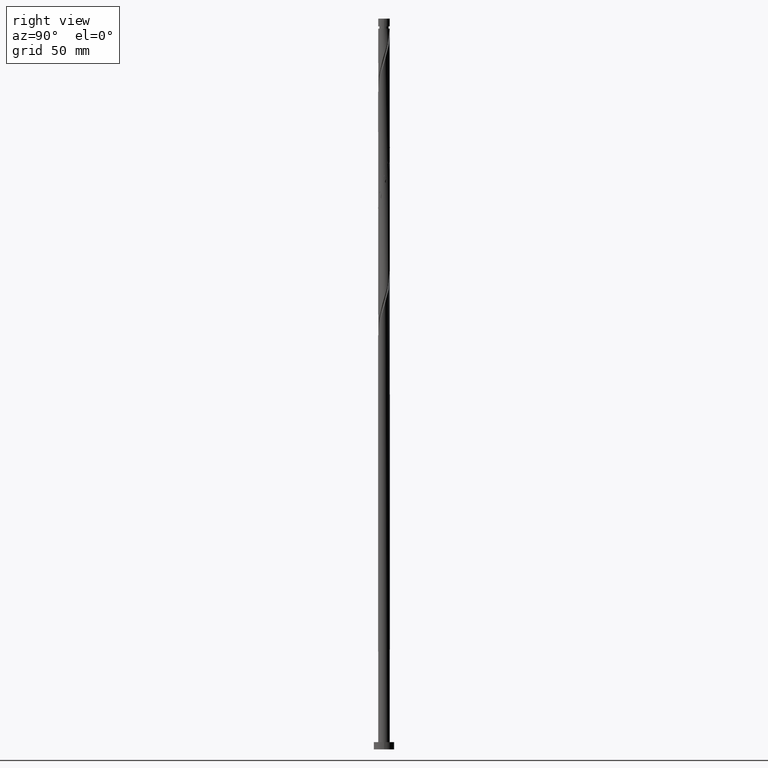
[diagram: clean part render]
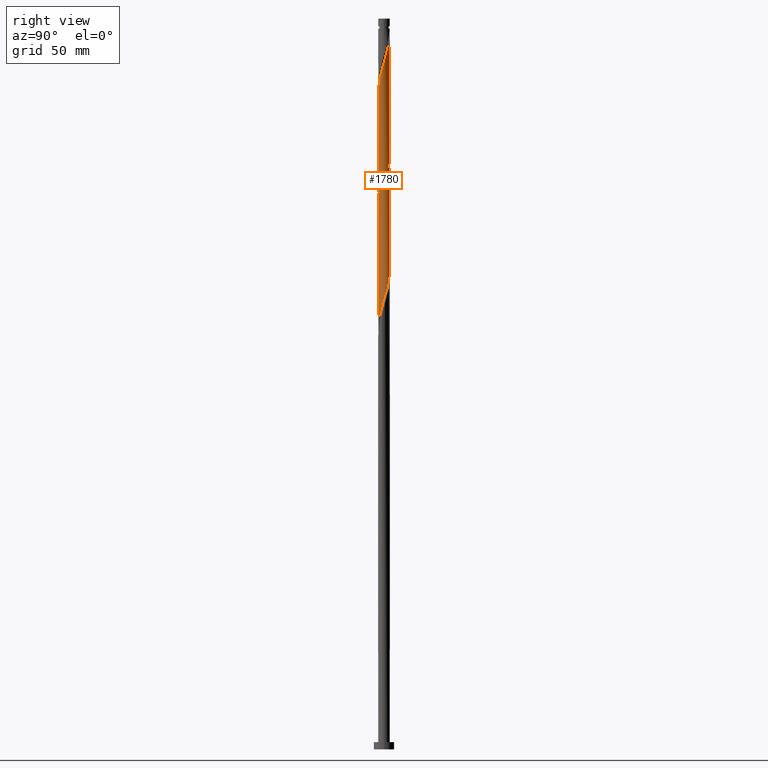
[diagram: same view with one face highlighted and labeled with its STEP entity id]
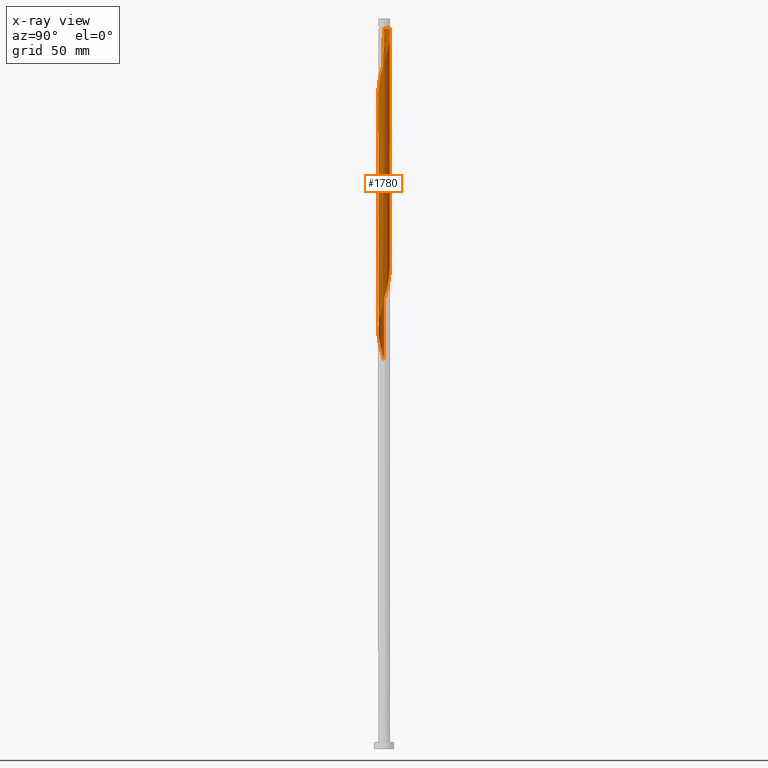
[diagram: x-ray of the same camera — body ghosted, the highlighted face saturated]
A machine part, right view. The second image highlights one B-rep face of the part: STEP entity #1780.
The next image is the same camera in x-ray: the body ghosted, the highlighted face saturated — about 0% of this face is hidden behind the body in this view.
In plain terms, the highlighted cylindrical surface (bore or boss wall) has radius 4 mm, axis along (-0, -0, -1).
Its self-contained STEP definition (entity closure, byte-faithful):
#1 = CARTESIAN_POINT ( 'NONE',  ( -2.537448808407606560, 3.117140107418181039, 338.1535422064215481 ) ) ;
#21 = CARTESIAN_POINT ( 'NONE',  ( 4.000000000000000000, 2.392225730791804345E-15, 391.5916558510851928 ) ) ;
#22 = AXIS2_PLACEMENT_3D ( 'NONE', #637, #1254, #1717 ) ;
#26 = EDGE_LOOP ( 'NONE', ( #1021, #1525, #1716, #1570, #176, #1401, #1177, #1411 ) ) ;
#28 = CARTESIAN_POINT ( 'NONE',  ( 4.000000000000000000, 4.898587196589412829E-16, 493.1014588730882906 ) ) ;
#70 =( BOUNDED_CURVE ( )  B_SPLINE_CURVE ( 2, ( #1037, #277, #1552, #464, #145, #1381, #1978, #318, #1230, #597, #763, #751, #629, #1517, #163, #1671, #1832, #1068, #781, #456, #1388, #1371, #309, #1839, #621, #1238, #1362, #1847, #362, #1858, #804, #1868, #669, #1405, #21 ),
 .UNSPECIFIED., .F., .T. ) 
 B_SPLINE_CURVE_WITH_KNOTS ( ( 3, 2, 2, 2, 2, 2, 2, 2, 2, 2, 2, 2, 2, 2, 2, 2, 2, 3 ),
 ( 0.4295286902180868727, 0.4296875000000000000, 0.4375000000000000000, 0.4453125000000000000, 0.4531250000000000000, 0.4609375000000000000, 0.4687500000000000000, 0.4765625000000000000, 0.4843750000000000000, 0.4921875000000000000, 0.5000000000000000000, 0.5078125000000000000, 0.5156250000000000000, 0.5234375000000000000, 0.5312500000000000000, 0.5390625000000000000, 0.5468750000000000000, 0.5545286902180870392 ),
 .UNSPECIFIED. ) 
 CURVE ( )  GEOMETRIC_REPRESENTATION_ITEM ( )  RATIONAL_B_SPLINE_CURVE ( ( 0.9089165573359603290, 0.9090019243628651990, 0.9090909090909571333, 0.9047133878838632404, 0.9090909090909571333, 0.9047133878838632404, 0.9090909090909571333, 0.9047133878838632404, 0.9090909090909571333, 0.9047133878838632404, 0.9090909090909571333, 0.9047133878838632404, 0.9090909090909571333, 0.9047133878838632404, 0.9090909090909571333, 0.9047133878838632404, 0.9090909090909571333, 0.9047133878838632404, 0.9090909090909571333, 0.9047133878838632404, 0.9090909090909571333, 0.9047133878838632404, 0.9090909090909571333, 0.9047133878838632404, 0.9090909090909571333, 0.9047133878838632404, 0.9090909090909571333, 0.9047133878838632404, 0.9090909090909571333, 0.9047133878838632404, 0.9090909090909571333, 0.9047133878838632404, 0.9090909090909571333, 0.9048023726119551746, 0.9089165573359603290 ) ) 
 REPRESENTATION_ITEM ( '' )  );
#71 = CARTESIAN_POINT ( 'NONE',  ( -3.316995601370557711, 2.235517877470090120, 342.0597922064217187 ) ) ;
#95 = CYLINDRICAL_SURFACE ( 'NONE', #1194, 4.000000000000000000 ) ;
#107 = DIRECTION ( 'NONE',  ( -1.000000000000000000, 0.000000000000000000, 0.000000000000000000 ) ) ;
#116 = CARTESIAN_POINT ( 'NONE',  ( 2.817132558398053099, -2.839676768298398990, 297.7889588730882338 ) ) ;
#119 = CARTESIAN_POINT ( 'NONE',  ( 3.998398167202708464, 0.4099036485252169904, 470.9660422064217187 ) ) ;
#122 = CARTESIAN_POINT ( 'NONE',  ( 3.850901564665827781, -1.151419143413270341, 465.7577088730883474 ) ) ;
#123 = CARTESIAN_POINT ( 'NONE',  ( -0.7959899496853010126, -3.919999999999999041, 284.7681255397549762 ) ) ;
#130 = VERTEX_POINT ( 'NONE', #379 ) ;
#135 = CARTESIAN_POINT ( 'NONE',  ( 3.117140107418182815, 2.537448808407604339, 317.3202088730882906 ) ) ;
#145 = CARTESIAN_POINT ( 'NONE',  ( -3.919999999999999041, 0.7959899496853005685, 430.6014588730882906 ) ) ;
#147 = CARTESIAN_POINT ( 'NONE',  ( 3.850901564665822452, 1.151419143413265900, 312.1118755397549762 ) ) ;
#148 = CARTESIAN_POINT ( 'NONE',  ( 3.841601832797294946, -1.182076250845383036, 387.6327088730882338 ) ) ;
#149 = CARTESIAN_POINT ( 'NONE',  ( -3.841601832797301608, -1.182076250845385479, 431.9035422064216050 ) ) ;
#154 = VECTOR ( 'NONE', #840, 1000.000000000000000 ) ;
#157 = CARTESIAN_POINT ( 'NONE',  ( 3.096816308388497863, -2.562213429178616941, 382.4243755397549194 ) ) ;
#158 = CARTESIAN_POINT ( 'NONE',  ( 0.7959899496853002354, -3.920000000000004370, 451.4347922064217187 ) ) ;
#163 = CARTESIAN_POINT ( 'NONE',  ( -1.515993858575281239, 3.701589202053900962, 417.5806255397549762 ) ) ;
#165 = CARTESIAN_POINT ( 'NONE',  ( 0.7647202322722135293, -3.926219933517929306, 373.3097922064218324 ) ) ;
#172 = CARTESIAN_POINT ( 'NONE',  ( -1.880568573737295468, 3.552276839441978584, 335.5493755397549194 ) ) ;
#176 = ORIENTED_EDGE ( 'NONE', *, *, #1199, .F. ) ;
#180 = EDGE_CURVE ( 'NONE', #1385, #416, #244, .T. ) ;
#188 = CARTESIAN_POINT ( 'NONE',  ( 2.817132558398058872, 2.839676768298401655, 480.0806255397549194 ) ) ;
#204 = CARTESIAN_POINT ( 'NONE',  ( 0.7647202322722181922, 3.926219933517933747, 487.8931255397550331 ) ) ;
#213 = CARTESIAN_POINT ( 'NONE',  ( -4.000000000000000000, -1.998025698020112396E-15, 266.5916558510852497 ) ) ;
#222 = CARTESIAN_POINT ( 'NONE',  ( -4.000000000000000000, 0.000000000000000000, 500.0000000000000000 ) ) ;
#244 = LINE ( 'NONE', #222, #154 ) ;
#266 = CARTESIAN_POINT ( 'NONE',  ( 0.000000000000000000, 0.000000000000000000, 500.0000000000000000 ) ) ;
#277 = CARTESIAN_POINT ( 'NONE',  ( -4.000000000000000000, 0.007970613497029151867, 433.2319689632346353 ) ) ;
#279 = CARTESIAN_POINT ( 'NONE',  ( -3.334708473430080033, -2.209008691072452013, 357.6847922064217187 ) ) ;
#280 = CARTESIAN_POINT ( 'NONE',  ( 3.999968234786374754, 0.01594116369702554964, 469.6639588730882338 ) ) ;
#284 = CARTESIAN_POINT ( 'NONE',  ( -3.689388363574960916, -1.545449288303474500, 433.2056255397549194 ) ) ;
#293 = CARTESIAN_POINT ( 'NONE',  ( 1.182076250845383480, 3.841601832797294946, 325.1327088730882338 ) ) ;
#301 = VERTEX_POINT ( 'NONE', #1294 ) ;
#308 = CARTESIAN_POINT ( 'NONE',  ( 3.998398167202702247, -0.4099036485252184336, 306.9035422064217187 ) ) ;
#309 = CARTESIAN_POINT ( 'NONE',  ( 1.545449288303474278, 3.689388363574954699, 407.1639588730882906 ) ) ;
#311 = CARTESIAN_POINT ( 'NONE',  ( 3.701589202053900962, 1.515993858575279463, 313.4139588730882906 ) ) ;
#312 = CARTESIAN_POINT ( 'NONE',  ( -0.7647202322722158607, -3.926219933517934635, 446.2264588730882906 ) ) ;
#318 = CARTESIAN_POINT ( 'NONE',  ( -3.537174894352615784, 1.908822325761561745, 426.6952088730882338 ) ) ;
#325 = CARTESIAN_POINT ( 'NONE',  ( 1.151419143413270785, 3.850901564665826893, 486.5910422064216618 ) ) ;
#326 = CARTESIAN_POINT ( 'NONE',  ( 2.209008691072451125, -3.334708473430080478, 295.1847922064216618 ) ) ;
#328 = CARTESIAN_POINT ( 'NONE',  ( 3.334708473430084918, -2.209008691072455566, 461.8514588730882906 ) ) ;
#342 = CARTESIAN_POINT ( 'NONE',  ( 3.841601832797301608, 1.182076250845383258, 473.5702088730884043 ) ) ;
#345 = CARTESIAN_POINT ( 'NONE',  ( -4.000000000000005329, -2.436957649404176998E-15, 427.9445952284248165 ) ) ;
#346 = CARTESIAN_POINT ( 'NONE',  ( 1.545449288303475388, -3.689388363574960916, 454.0389588730883474 ) ) ;
#362 = CARTESIAN_POINT ( 'NONE',  ( 3.334708473430080478, 2.209008691072450681, 399.3514588730883474 ) ) ;
#379 = CARTESIAN_POINT ( 'NONE',  ( 4.000000000000000000, 2.392225730791804345E-15, 391.5916558510852497 ) ) ;
#416 = VERTEX_POINT ( 'NONE', #213 ) ;
#434 = FACE_OUTER_BOUND ( 'NONE', #26, .T. ) ;
#456 = CARTESIAN_POINT ( 'NONE',  ( 0.4099036485252164352, 3.998398167202702247, 411.0702088730882906 ) ) ;
#464 = CARTESIAN_POINT ( 'NONE',  ( -3.998398167202702247, 0.4099036485252162132, 431.9035422064216050 ) ) ;
#468 = CARTESIAN_POINT ( 'NONE',  ( -1.880568573737299243, -3.552276839441983469, 442.3202088730883474 ) ) ;
#473 = CARTESIAN_POINT ( 'NONE',  ( -1.151419143413266566, 3.850901564665822452, 332.9452088730882338 ) ) ;
#474 = CARTESIAN_POINT ( 'NONE',  ( 1.515993858575280351, -3.701589202053900962, 375.9139588730883474 ) ) ;
#475 = CARTESIAN_POINT ( 'NONE',  ( 0.4099036485252156026, -3.998398167202707576, 450.1327088730884043 ) ) ;
#482 = CARTESIAN_POINT ( 'NONE',  ( 2.839676768298402099, -2.817132558398058872, 459.2472922064215481 ) ) ;
#507 = CARTESIAN_POINT ( 'NONE',  ( 1.151419143413266566, -3.850901564665822452, 291.2785422064216050 ) ) ;
#532 = EDGE_CURVE ( 'NONE', #1385, #301, #1598, .T. ) ;
#542 = CARTESIAN_POINT ( 'NONE',  ( -0.7959899496853010126, -3.919999999999999041, 368.1014588730883474 ) ) ;
#596 = CARTESIAN_POINT ( 'NONE',  ( 3.919999999999999041, -0.7959899496853011236, 305.6014588730882906 ) ) ;
#597 = CARTESIAN_POINT ( 'NONE',  ( -3.096816308388497863, 2.562213429178616941, 424.0910422064217187 ) ) ;
#600 = CARTESIAN_POINT ( 'NONE',  ( -0.4099036485252055551, 3.998398167202708464, 491.7993755397549194 ) ) ;
#614 = CARTESIAN_POINT ( 'NONE',  ( -1.515993858575281239, 3.701589202053900962, 334.2472922064216050 ) ) ;
#615 = CARTESIAN_POINT ( 'NONE',  ( 1.880568573737294580, -3.552276839441978584, 377.2160422064216050 ) ) ;
#621 = CARTESIAN_POINT ( 'NONE',  ( 2.235517877470091896, 3.316995601370555935, 404.5597922064217187 ) ) ;
#629 = CARTESIAN_POINT ( 'NONE',  ( -2.209008691072452013, 3.334708473430080478, 420.1847922064217187 ) ) ;
#637 = CARTESIAN_POINT ( 'NONE',  ( 0.000000000000000000, 0.000000000000000000, 493.1014588730882906 ) ) ;
#647 = CARTESIAN_POINT ( 'NONE',  ( 3.920000000000004370, 0.7959899496853001244, 472.2681255397549762 ) ) ;
#655 = CARTESIAN_POINT ( 'NONE',  ( 3.689388363574960916, 1.545449288303475166, 474.8722922064215481 ) ) ;
#669 = CARTESIAN_POINT ( 'NONE',  ( 3.926219933517928862, 0.7647202322722149725, 394.1431255397550331 ) ) ;
#680 = CARTESIAN_POINT ( 'NONE',  ( -3.117140107418181039, -2.537448808407606560, 275.6535422064216050 ) ) ;
#685 = CARTESIAN_POINT ( 'NONE',  ( 3.552276839441982137, -1.880568573737301019, 463.1535422064216618 ) ) ;
#693 = CARTESIAN_POINT ( 'NONE',  ( -3.552276839441978584, -1.880568573737295024, 273.0493755397549762 ) ) ;
#697 = CARTESIAN_POINT ( 'NONE',  ( -3.096816308388497863, 2.562213429178616941, 340.7577088730882906 ) ) ;
#723 = VERTEX_POINT ( 'NONE', #1519 ) ;
#731 = CARTESIAN_POINT ( 'NONE',  ( -1.545449288303474278, -3.689388363574954699, 282.1639588730882906 ) ) ;
#742 = CARTESIAN_POINT ( 'NONE',  ( -3.701589202053900962, -1.515993858575280351, 355.0806255397550331 ) ) ;
#751 = CARTESIAN_POINT ( 'NONE',  ( -2.537448808407606560, 3.117140107418181039, 421.4868755397550899 ) ) ;
#754 = CARTESIAN_POINT ( 'NONE',  ( 3.334708473430080478, 2.209008691072450681, 316.0181255397550899 ) ) ;
#758 = EDGE_CURVE ( 'NONE', #1446, #301, #908, .T. ) ;
#763 = CARTESIAN_POINT ( 'NONE',  ( -2.817132558398053099, 2.839676768298400322, 422.7889588730884043 ) ) ;
#765 = CARTESIAN_POINT ( 'NONE',  ( 4.001538302370035716, 0.3780213211311593269, 309.5077088730883474 ) ) ;
#766 = CARTESIAN_POINT ( 'NONE',  ( 3.537174894352614896, -1.908822325761562189, 385.0285422064216050 ) ) ;
#767 = CARTESIAN_POINT ( 'NONE',  ( -3.998398167202707576, -0.4099036485252157136, 429.2993755397549194 ) ) ;
#773 = CARTESIAN_POINT ( 'NONE',  ( 3.926219933517928862, 0.7647202322722149725, 310.8097922064217755 ) ) ;
#775 = CARTESIAN_POINT ( 'NONE',  ( 2.537448808407605227, -3.117140107418182815, 379.8202088730882338 ) ) ;
#781 = CARTESIAN_POINT ( 'NONE',  ( 0.01594116369702782560, 3.999968234786370314, 412.3722922064216618 ) ) ;
#790 = CARTESIAN_POINT ( 'NONE',  ( -3.999999999999998224, -0.3859192597159316063, 267.8676359565013172 ) ) ;
#792 = VERTEX_POINT ( 'NONE', #28 ) ;
#803 = CARTESIAN_POINT ( 'NONE',  ( 2.209008691072455566, 3.334708473430084474, 482.6847922064216050 ) ) ;
#804 = CARTESIAN_POINT ( 'NONE',  ( 3.701589202053900962, 1.515993858575279463, 396.7472922064217187 ) ) ;
#824 = CARTESIAN_POINT ( 'NONE',  ( 0.3780213211311595489, -4.001538302370035716, 288.6743755397549194 ) ) ;
#836 = CARTESIAN_POINT ( 'NONE',  ( -1.182076250845384369, -3.841601832797293614, 283.4660422064215481 ) ) ;
#840 = DIRECTION ( 'NONE',  ( -0.000000000000000000, -0.000000000000000000, -1.000000000000000000 ) ) ;
#849 = CARTESIAN_POINT ( 'NONE',  ( -2.235517877470090120, -3.316995601370557267, 279.5597922064216618 ) ) ;
#853 = CARTESIAN_POINT ( 'NONE',  ( -3.689388363574955143, 1.545449288303473390, 344.6639588730882906 ) ) ;
#866 = CARTESIAN_POINT ( 'NONE',  ( -1.182076250845384369, -3.841601832797293614, 366.7993755397550899 ) ) ;
#878 = CARTESIAN_POINT ( 'NONE',  ( -2.817132558398058872, -2.839676768298402099, 438.4139588730882338 ) ) ;
#887 = CARTESIAN_POINT ( 'NONE',  ( -2.839676768298399878, -2.817132558398053988, 360.2889588730885180 ) ) ;
#898 = CARTESIAN_POINT ( 'NONE',  ( -3.552276839441978584, -1.880568573737295024, 356.3827088730882338 ) ) ;
#908 = CIRCLE ( 'NONE', #22, 3.999999999999952482 ) ;
#910 = CARTESIAN_POINT ( 'NONE',  ( 1.545449288303474278, 3.689388363574954699, 323.8306255397550899 ) ) ;
#920 = CARTESIAN_POINT ( 'NONE',  ( 0.4099036485252164352, 3.998398167202702247, 327.7368755397549194 ) ) ;
#938 = CARTESIAN_POINT ( 'NONE',  ( 3.998398167202702247, -0.4099036485252184336, 390.2368755397549194 ) ) ;
#965 = CARTESIAN_POINT ( 'NONE',  ( 0.7647202322722135293, -3.926219933517929306, 289.9764588730882338 ) ) ;
#984 = CARTESIAN_POINT ( 'NONE',  ( -3.334708473430080033, -2.209008691072452013, 274.3514588730882906 ) ) ;
#989 = CARTESIAN_POINT ( 'NONE',  ( -2.235517877470090120, -3.316995601370557267, 362.8931255397550899 ) ) ;
#1002 = CARTESIAN_POINT ( 'NONE',  ( -3.537174894352615784, 1.908822325761561745, 343.3618755397549762 ) ) ;
#1013 = CARTESIAN_POINT ( 'NONE',  ( -0.4099036485252164352, -3.998398167202702247, 369.4035422064217187 ) ) ;
#1016 = CARTESIAN_POINT ( 'NONE',  ( -3.096816308388504080, -2.562213429178620494, 437.1118755397549762 ) ) ;
#1021 = ORIENTED_EDGE ( 'NONE', *, *, #1114, .F. ) ;
#1027 = CARTESIAN_POINT ( 'NONE',  ( -0.01594116369702740232, -3.999968234786370314, 370.7056255397550331 ) ) ;
#1037 = CARTESIAN_POINT ( 'NONE',  ( -4.000000000000000000, -1.998025698020112396E-15, 433.2583225177519353 ) ) ;
#1052 = CARTESIAN_POINT ( 'NONE',  ( -4.000000000000004441, -0.007970613497025240066, 427.9709487829419459 ) ) ;
#1062 = CARTESIAN_POINT ( 'NONE',  ( 3.999968234786370314, -0.01594116369702761396, 391.5389588730883474 ) ) ;
#1063 = CARTESIAN_POINT ( 'NONE',  ( 4.001538302370041933, -0.3780213211311623245, 468.3618755397549762 ) ) ;
#1068 = CARTESIAN_POINT ( 'NONE',  ( -0.3780213211311605481, 4.001538302370035716, 413.6743755397549194 ) ) ;
#1070 = CARTESIAN_POINT ( 'NONE',  ( -4.000000000000000000, -1.998025698020112396E-15, 266.5916558510852497 ) ) ;
#1071 = CARTESIAN_POINT ( 'NONE',  ( 1.908822325761563299, -3.537174894352622001, 455.3410422064215481 ) ) ;
#1077 = CARTESIAN_POINT ( 'NONE',  ( -0.3780213211311605481, 4.001538302370035716, 330.3410422064216618 ) ) ;
#1086 = CARTESIAN_POINT ( 'NONE',  ( 2.235517877470091896, 3.316995601370555935, 321.2264588730883474 ) ) ;
#1088 = VECTOR ( 'NONE', #1949, 1000.000000000000000 ) ;
#1105 = CARTESIAN_POINT ( 'NONE',  ( -1.151419143413270119, -3.850901564665826893, 444.9243755397550331 ) ) ;
#1114 = EDGE_CURVE ( 'NONE', #1446, #723, #1764, .T. ) ;
#1133 = CARTESIAN_POINT ( 'NONE',  ( -0.01594116369702740232, -3.999968234786370314, 287.3722922064216618 ) ) ;
#1153 = CARTESIAN_POINT ( 'NONE',  ( -2.562213429178616941, -3.096816308388497863, 278.2577088730882906 ) ) ;
#1173 = CARTESIAN_POINT ( 'NONE',  ( -4.000000000000005329, -2.436957649404177787E-15, 427.9445952284248733 ) ) ;
#1177 = ORIENTED_EDGE ( 'NONE', *, *, #1887, .T. ) ;
#1186 = CARTESIAN_POINT ( 'NONE',  ( -3.999968234786374754, -0.01594116369702693048, 427.9972922064217187 ) ) ;
#1194 = AXIS2_PLACEMENT_3D ( 'NONE', #266, #1324, #107 ) ;
#1197 = CARTESIAN_POINT ( 'NONE',  ( -1.545449288303474278, -3.689388363574954699, 365.4972922064217755 ) ) ;
#1199 = EDGE_CURVE ( 'NONE', #130, #416, #1674, .T. ) ;
#1210 = CARTESIAN_POINT ( 'NONE',  ( -3.919999999999999041, 0.7959899496853005685, 347.2681255397549762 ) ) ;
#1213 = CARTESIAN_POINT ( 'NONE',  ( -3.850901564665822452, -1.151419143413266566, 270.4452088730882906 ) ) ;
#1221 = CARTESIAN_POINT ( 'NONE',  ( 3.316995601370563040, 2.235517877470092785, 477.4764588730882906 ) ) ;
#1230 = CARTESIAN_POINT ( 'NONE',  ( -3.316995601370557711, 2.235517877470090120, 425.3931255397549762 ) ) ;
#1233 = CARTESIAN_POINT ( 'NONE',  ( 2.817132558398053099, -2.839676768298398990, 381.1222922064217755 ) ) ;
#1237 = CARTESIAN_POINT ( 'NONE',  ( 3.537174894352614896, -1.908822325761562189, 301.6952088730882338 ) ) ;
#1238 = CARTESIAN_POINT ( 'NONE',  ( 2.562213429178616941, 3.096816308388496974, 403.2577088730882906 ) ) ;
#1241 = CARTESIAN_POINT ( 'NONE',  ( 2.562213429178620050, -3.096816308388504080, 457.9452088730884043 ) ) ;
#1247 = CARTESIAN_POINT ( 'NONE',  ( 3.919999999999999041, -0.7959899496853011236, 388.9347922064217755 ) ) ;
#1249 = CARTESIAN_POINT ( 'NONE',  ( 0.01594116369702586189, -3.999968234786374754, 448.8306255397551467 ) ) ;
#1254 = DIRECTION ( 'NONE',  ( -0.000000000000000000, -0.000000000000000000, -1.000000000000000000 ) ) ;
#1270 = CARTESIAN_POINT ( 'NONE',  ( 3.537174894352622001, 1.908822325761563299, 476.1743755397550899 ) ) ;
#1271 = CARTESIAN_POINT ( 'NONE',  ( 1.880568573737294580, -3.552276839441978584, 293.8827088730882906 ) ) ;
#1294 = CARTESIAN_POINT ( 'NONE',  ( -0.7959899496852952394, 3.919999999999960849, 493.1014588730881769 ) ) ;
#1306 = CARTESIAN_POINT ( 'NONE',  ( -3.926219933517929306, -0.7647202322722138623, 352.4764588730883474 ) ) ;
#1312 = VECTOR ( 'NONE', #1466, 1000.000000000000000 ) ;
#1318 = CARTESIAN_POINT ( 'NONE',  ( 0.3780213211311595489, -4.001538302370035716, 372.0077088730882338 ) ) ;
#1324 = DIRECTION ( 'NONE',  ( -0.000000000000000000, -0.000000000000000000, -1.000000000000000000 ) ) ;
#1329 = CARTESIAN_POINT ( 'NONE',  ( -2.209008691072454678, -3.334708473430084474, 441.0181255397549762 ) ) ;
#1337 = LINE ( 'NONE', #1811, #1088 ) ;
#1341 = CARTESIAN_POINT ( 'NONE',  ( -2.839676768298399878, -2.817132558398053988, 276.9556255397549762 ) ) ;
#1353 = CARTESIAN_POINT ( 'NONE',  ( -3.998398167202702247, 0.4099036485252162132, 348.5702088730882906 ) ) ;
#1362 = CARTESIAN_POINT ( 'NONE',  ( 2.839676768298398990, 2.817132558398053099, 401.9556255397550331 ) ) ;
#1371 = CARTESIAN_POINT ( 'NONE',  ( 1.182076250845383480, 3.841601832797294946, 408.4660422064216050 ) ) ;
#1373 = CARTESIAN_POINT ( 'NONE',  ( 3.316995601370555935, -2.235517877470091896, 383.7264588730883474 ) ) ;
#1381 = CARTESIAN_POINT ( 'NONE',  ( -3.841601832797293614, 1.182076250845384369, 429.2993755397548625 ) ) ;
#1382 = CARTESIAN_POINT ( 'NONE',  ( 2.209008691072451125, -3.334708473430080478, 378.5181255397549762 ) ) ;
#1385 = VERTEX_POINT ( 'NONE', #345 ) ;
#1387 = CARTESIAN_POINT ( 'NONE',  ( 3.316995601370555935, -2.235517877470091896, 300.3931255397549762 ) ) ;
#1388 = CARTESIAN_POINT ( 'NONE',  ( 0.7959899496853012346, 3.919999999999999041, 409.7681255397549194 ) ) ;
#1391 = CARTESIAN_POINT ( 'NONE',  ( 1.908822325761562411, 3.537174894352614896, 322.5285422064216618 ) ) ;
#1392 = CARTESIAN_POINT ( 'NONE',  ( 2.235517877470091452, -3.316995601370563040, 456.6431255397548625 ) ) ;
#1398 = CARTESIAN_POINT ( 'NONE',  ( -0.7647202322722140844, 3.926219933517929306, 331.6431255397550331 ) ) ;
#1399 = CARTESIAN_POINT ( 'NONE',  ( 4.000000000000000888, -0.007970613497037100370, 391.5653022965680066 ) ) ;
#1401 = ORIENTED_EDGE ( 'NONE', *, *, #1887, .F. ) ;
#1405 = CARTESIAN_POINT ( 'NONE',  ( 3.999999999999998224, 0.3859192597159312177, 392.8676359565013740 ) ) ;
#1411 = ORIENTED_EDGE ( 'NONE', *, *, #1940, .F. ) ;
#1415 = CARTESIAN_POINT ( 'NONE',  ( -0.01594116369702533106, 3.999968234786374754, 490.4972922064216050 ) ) ;
#1446 = VERTEX_POINT ( 'NONE', #1759 ) ;
#1457 = CARTESIAN_POINT ( 'NONE',  ( -1.908822325761561745, -3.537174894352615340, 364.1952088730883474 ) ) ;
#1466 = DIRECTION ( 'NONE',  ( -0.000000000000000000, -0.000000000000000000, -1.000000000000000000 ) ) ;
#1482 = CARTESIAN_POINT ( 'NONE',  ( -3.999968234786370314, 0.01594116369702804070, 349.8722922064217187 ) ) ;
#1486 = CARTESIAN_POINT ( 'NONE',  ( -2.537448808407611001, -3.117140107418185924, 439.7160422064216050 ) ) ;
#1497 = CARTESIAN_POINT ( 'NONE',  ( 3.926219933517933747, -0.7647202322722179701, 467.0597922064214913 ) ) ;
#1510 = CARTESIAN_POINT ( 'NONE',  ( -1.908822325761561745, -3.537174894352615340, 280.8618755397548625 ) ) ;
#1517 = CARTESIAN_POINT ( 'NONE',  ( -1.880568573737295468, 3.552276839441978584, 418.8827088730883474 ) ) ;
#1519 = CARTESIAN_POINT ( 'NONE',  ( -4.000000000000000000, -1.998025698020112396E-15, 433.2583225177519353 ) ) ;
#1520 = CARTESIAN_POINT ( 'NONE',  ( 0.7959899496853012346, 3.919999999999999041, 326.4347922064216618 ) ) ;
#1522 = CARTESIAN_POINT ( 'NONE',  ( 3.701589202053905847, -1.515993858575283904, 464.4556255397549194 ) ) ;
#1525 = ORIENTED_EDGE ( 'NONE', *, *, #758, .T. ) ;
#1529 = CARTESIAN_POINT ( 'NONE',  ( 0.01594116369702782560, 3.999968234786370314, 329.0389588730883474 ) ) ;
#1531 = CARTESIAN_POINT ( 'NONE',  ( -3.920000000000004370, -0.7959899496853005685, 430.6014588730882906 ) ) ;
#1536 = CARTESIAN_POINT ( 'NONE',  ( 3.689388363574954699, -1.545449288303474278, 302.9972922064217187 ) ) ;
#1537 = CARTESIAN_POINT ( 'NONE',  ( -2.209008691072452013, 3.334708473430080478, 336.8514588730883474 ) ) ;
#1538 = CARTESIAN_POINT ( 'NONE',  ( 4.000000000000000000, 2.392225730791804345E-15, 391.5916558510851928 ) ) ;
#1539 = CARTESIAN_POINT ( 'NONE',  ( -0.3780213211311619914, -4.001538302370041933, 447.5285422064216050 ) ) ;
#1546 = CARTESIAN_POINT ( 'NONE',  ( 1.151419143413266566, -3.850901564665822452, 374.6118755397550331 ) ) ;
#1552 = CARTESIAN_POINT ( 'NONE',  ( -3.999968234786370314, 0.01594116369702804070, 433.2056255397549762 ) ) ;
#1554 = CARTESIAN_POINT ( 'NONE',  ( -3.926219933517929306, -0.7647202322722138623, 269.1431255397550331 ) ) ;
#1570 = ORIENTED_EDGE ( 'NONE', *, *, #180, .T. ) ;
#1586 = CARTESIAN_POINT ( 'NONE',  ( -4.000000000000000000, 0.000000000000000000, 500.0000000000000000 ) ) ;
#1598 =( BOUNDED_CURVE ( )  B_SPLINE_CURVE ( 2, ( #1173, #1052, #1186, #767, #1531, #149, #284, #1663, #1784, #1016, #878, #1486, #1329, #468, #1861, #1105, #312, #1539, #1249, #475, #158, #1721, #346, #1071, #1392, #1241, #482, #1707, #328, #685, #1522, #122, #1497, #1063, #280, #119, #647, #342, #655, #1270, #1221, #1876, #188, #1853, #803, #1702, #1736, #325, #204, #1973, #1415, #600, #1826 ),
 .UNSPECIFIED., .F., .T. ) 
 B_SPLINE_CURVE_WITH_KNOTS ( ( 3, 2, 2, 2, 2, 2, 2, 2, 2, 2, 2, 2, 2, 2, 2, 2, 2, 2, 2, 2, 2, 2, 2, 2, 2, 2, 3 ),
 ( 0.5545286902180868172, 0.5546875000000000000, 0.5625000000000000000, 0.5703125000000000000, 0.5781250000000000000, 0.5859375000000000000, 0.5937500000000000000, 0.6015625000000000000, 0.6093749999999998890, 0.6171874999999998890, 0.6249999999999998890, 0.6328124999999998890, 0.6406249999999998890, 0.6484374999999998890, 0.6562499999999998890, 0.6640624999999998890, 0.6718749999999998890, 0.6796874999999998890, 0.6874999999999997780, 0.6953124999999997780, 0.7031249999999997780, 0.7109374999999997780, 0.7187499999999997780, 0.7265624999999997780, 0.7343749999999997780, 0.7421874999999997780, 0.7499999999999997780 ),
 .UNSPECIFIED. ) 
 CURVE ( )  GEOMETRIC_REPRESENTATION_ITEM ( )  RATIONAL_B_SPLINE_CURVE ( ( 0.9089165573359667682, 0.9090019243628717494, 0.9090909090909637946, 0.9047133878838696797, 0.9090909090909637946, 0.9047133878838696797, 0.9090909090909637946, 0.9047133878838696797, 0.9090909090909637946, 0.9047133878838696797, 0.9090909090909637946, 0.9047133878838696797, 0.9090909090909637946, 0.9047133878838696797, 0.9090909090909637946, 0.9047133878838696797, 0.9090909090909637946, 0.9047133878838696797, 0.9090909090909637946, 0.9047133878838696797, 0.9090909090909637946, 0.9047133878838696797, 0.9090909090909637946, 0.9047133878838696797, 0.9090909090909637946, 0.9047133878838696797, 0.9090909090909637946, 0.9047133878838696797, 0.9090909090909637946, 0.9047133878838696797, 0.9090909090909637946, 0.9047133878838696797, 0.9090909090909637946, 0.9047133878838696797, 0.9090909090909637946, 0.9047133878838696797, 0.9090909090909637946, 0.9047133878838696797, 0.9090909090909637946, 0.9047133878838696797, 0.9090909090909637946, 0.9047133878838696797, 0.9090909090909637946, 0.9047133878838696797, 0.9090909090909637946, 0.9047133878838696797, 0.9090909090909637946, 0.9047133878838696797, 0.9090909090909637946, 0.9047133878838696797, 0.9090909090909637946, 0.9047133878838697907, 0.9090909090909636836 ) ) 
 REPRESENTATION_ITEM ( '' )  );
#1614 = CARTESIAN_POINT ( 'NONE',  ( -3.841601832797293614, 1.182076250845384369, 345.9660422064216050 ) ) ;
#1634 = CARTESIAN_POINT ( 'NONE',  ( -4.001538302370035716, -0.3780213211311597155, 351.1743755397548625 ) ) ;
#1646 = CARTESIAN_POINT ( 'NONE',  ( -3.117140107418181039, -2.537448808407606560, 358.9868755397549762 ) ) ;
#1662 = CARTESIAN_POINT ( 'NONE',  ( -3.701589202053900962, -1.515993858575280351, 271.7472922064217755 ) ) ;
#1663 = CARTESIAN_POINT ( 'NONE',  ( -3.537174894352622001, -1.908822325761563299, 434.5077088730882906 ) ) ;
#1671 = CARTESIAN_POINT ( 'NONE',  ( -1.151419143413266566, 3.850901564665822452, 416.2785422064216618 ) ) ;
#1674 =( BOUNDED_CURVE ( )  B_SPLINE_CURVE ( 2, ( #1538, #1399, #1062, #938, #1247, #148, #1697, #766, #1373, #157, #1233, #775, #1382, #615, #474, #1546, #165, #1318, #1027, #1013, #542, #866, #1197, #1457, #989, #1804, #887, #1646, #279, #898, #742, #1929, #1306, #1634, #1482, #1353, #1210, #1614, #853, #1002, #71, #697, #1917, #1, #1537, #172, #614, #473, #1398, #1077, #1529, #920, #1520, #293, #910, #1391, #1086, #1687, #1813, #135, #754, #1825, #311, #147, #773, #765, #1838, #308, #596, #1683, #1536, #1237, #1387, #1846, #116, #1703, #326, #1271, #1877, #507, #965, #824, #1133, #1747, #123, #836, #731, #1510, #849, #1153, #1341, #680, #984, #693, #1662, #1213, #1554, #790, #1070 ),
 .UNSPECIFIED., .F., .T. ) 
 B_SPLINE_CURVE_WITH_KNOTS ( ( 3, 2, 2, 2, 2, 2, 2, 2, 2, 2, 2, 2, 2, 2, 2, 2, 2, 2, 2, 2, 2, 2, 2, 2, 2, 2, 2, 2, 2, 2, 2, 2, 2, 2, 2, 2, 2, 2, 2, 2, 2, 2, 2, 2, 2, 2, 2, 2, 2, 3 ),
 ( 0.5545286902180870392, 0.5546875000000000000, 0.5625000000000000000, 0.5703125000000000000, 0.5781250000000000000, 0.5859375000000000000, 0.5937500000000000000, 0.6015625000000000000, 0.6093750000000000000, 0.6171875000000000000, 0.6250000000000000000, 0.6328125000000000000, 0.6406250000000000000, 0.6484375000000000000, 0.6562500000000000000, 0.6640625000000000000, 0.6718750000000000000, 0.6796875000000000000, 0.6875000000000000000, 0.6953125000000000000, 0.7031250000000000000, 0.7109375000000000000, 0.7187500000000000000, 0.7265625000000000000, 0.7343750000000000000, 0.7421875000000000000, 0.7500000000000000000, 0.7578125000000000000, 0.7656250000000000000, 0.7734375000000000000, 0.7812500000000000000, 0.7890625000000000000, 0.7968750000000000000, 0.8046875000000000000, 0.8125000000000000000, 0.8203125000000000000, 0.8281250000000000000, 0.8359375000000000000, 0.8437500000000000000, 0.8515625000000000000, 0.8593750000000000000, 0.8671875000000000000, 0.8750000000000000000, 0.8828125000000000000, 0.8906250000000000000, 0.8984375000000000000, 0.9062500000000000000, 0.9140625000000000000, 0.9218750000000000000, 0.9295286902180870392 ),
 .UNSPECIFIED. ) 
 CURVE ( )  GEOMETRIC_REPRESENTATION_ITEM ( )  RATIONAL_B_SPLINE_CURVE ( ( 0.9089165573359603290, 0.9090019243628651990, 0.9090909090909571333, 0.9047133878838632404, 0.9090909090909571333, 0.9047133878838632404, 0.9090909090909571333, 0.9047133878838632404, 0.9090909090909571333, 0.9047133878838632404, 0.9090909090909571333, 0.9047133878838632404, 0.9090909090909571333, 0.9047133878838632404, 0.9090909090909571333, 0.9047133878838632404, 0.9090909090909571333, 0.9047133878838632404, 0.9090909090909571333, 0.9047133878838632404, 0.9090909090909571333, 0.9047133878838632404, 0.9090909090909571333, 0.9047133878838632404, 0.9090909090909571333, 0.9047133878838632404, 0.9090909090909571333, 0.9047133878838632404, 0.9090909090909571333, 0.9047133878838632404, 0.9090909090909571333, 0.9047133878838632404, 0.9090909090909571333, 0.9047133878838632404, 0.9090909090909571333, 0.9047133878838632404, 0.9090909090909571333, 0.9047133878838632404, 0.9090909090909571333, 0.9047133878838632404, 0.9090909090909571333, 0.9047133878838632404, 0.9090909090909571333, 0.9047133878838632404, 0.9090909090909571333, 0.9047133878838632404, 0.9090909090909571333, 0.9047133878838632404, 0.9090909090909571333, 0.9047133878838632404, 0.9090909090909571333, 0.9047133878838632404, 0.9090909090909571333, 0.9047133878838632404, 0.9090909090909571333, 0.9047133878838632404, 0.9090909090909571333, 0.9047133878838632404, 0.9090909090909571333, 0.9047133878838632404, 0.9090909090909571333, 0.9047133878838632404, 0.9090909090909571333, 0.9047133878838632404, 0.9090909090909571333, 0.9047133878838632404, 0.9090909090909571333, 0.9047133878838632404, 0.9090909090909571333, 0.9047133878838632404, 0.9090909090909571333, 0.9047133878838632404, 0.9090909090909571333, 0.9047133878838632404, 0.9090909090909571333, 0.9047133878838632404, 0.9090909090909571333, 0.9047133878838632404, 0.9090909090909571333, 0.9047133878838632404, 0.9090909090909571333, 0.9047133878838632404, 0.9090909090909571333, 0.9047133878838632404, 0.9090909090909571333, 0.9047133878838632404, 0.9090909090909571333, 0.9047133878838632404, 0.9090909090909571333, 0.9047133878838632404, 0.9090909090909571333, 0.9047133878838632404, 0.9090909090909571333, 0.9047133878838632404, 0.9090909090909571333, 0.9047133878838632404, 0.9090909090909571333, 0.9048023726119551746, 0.9089165573359603290 ) ) 
 REPRESENTATION_ITEM ( '' )  );
#1683 = CARTESIAN_POINT ( 'NONE',  ( 3.841601832797294946, -1.182076250845383036, 304.2993755397549194 ) ) ;
#1687 = CARTESIAN_POINT ( 'NONE',  ( 2.562213429178616941, 3.096816308388496974, 319.9243755397550331 ) ) ;
#1697 = CARTESIAN_POINT ( 'NONE',  ( 3.689388363574954699, -1.545449288303474278, 386.3306255397550899 ) ) ;
#1702 = CARTESIAN_POINT ( 'NONE',  ( 1.880568573737301685, 3.552276839441981693, 483.9868755397550331 ) ) ;
#1703 = CARTESIAN_POINT ( 'NONE',  ( 2.537448808407605227, -3.117140107418182815, 296.4868755397549194 ) ) ;
#1707 = CARTESIAN_POINT ( 'NONE',  ( 3.117140107418185035, -2.537448808407611001, 460.5493755397549762 ) ) ;
#1716 = ORIENTED_EDGE ( 'NONE', *, *, #532, .F. ) ;
#1717 = DIRECTION ( 'NONE',  ( -1.000000000000000000, 0.000000000000000000, 0.000000000000000000 ) ) ;
#1721 = CARTESIAN_POINT ( 'NONE',  ( 1.182076250845385479, -3.841601832797301608, 452.7368755397549194 ) ) ;
#1736 = CARTESIAN_POINT ( 'NONE',  ( 1.515993858575283904, 3.701589202053905847, 485.2889588730884043 ) ) ;
#1747 = CARTESIAN_POINT ( 'NONE',  ( -0.4099036485252164352, -3.998398167202702247, 286.0702088730881769 ) ) ;
#1759 = CARTESIAN_POINT ( 'NONE',  ( -3.999999999999952482, 0.000000000000000000, 493.1014588730882906 ) ) ;
#1764 = LINE ( 'NONE', #1586, #1312 ) ;
#1780 = ADVANCED_FACE ( 'NONE', ( #434 ), #95, .T. ) ;
#1784 = CARTESIAN_POINT ( 'NONE',  ( -3.316995601370563040, -2.235517877470091452, 435.8097922064216050 ) ) ;
#1804 = CARTESIAN_POINT ( 'NONE',  ( -2.562213429178616941, -3.096816308388497863, 361.5910422064216618 ) ) ;
#1811 = CARTESIAN_POINT ( 'NONE',  ( 4.000000000000000000, 4.898587196589412829E-16, 500.0000000000000000 ) ) ;
#1813 = CARTESIAN_POINT ( 'NONE',  ( 2.839676768298398990, 2.817132558398053099, 318.6222922064217187 ) ) ;
#1825 = CARTESIAN_POINT ( 'NONE',  ( 3.552276839441977696, 1.880568573737295912, 314.7160422064217187 ) ) ;
#1826 = CARTESIAN_POINT ( 'NONE',  ( -0.7959899496852952394, 3.919999999999960849, 493.1014588730881769 ) ) ;
#1832 = CARTESIAN_POINT ( 'NONE',  ( -0.7647202322722140844, 3.926219933517929306, 414.9764588730882906 ) ) ;
#1838 = CARTESIAN_POINT ( 'NONE',  ( 3.999968234786370314, -0.01594116369702761396, 308.2056255397549762 ) ) ;
#1839 = CARTESIAN_POINT ( 'NONE',  ( 1.908822325761562411, 3.537174894352614896, 405.8618755397549762 ) ) ;
#1846 = CARTESIAN_POINT ( 'NONE',  ( 3.096816308388497863, -2.562213429178616941, 299.0910422064215481 ) ) ;
#1847 = CARTESIAN_POINT ( 'NONE',  ( 3.117140107418182815, 2.537448808407604339, 400.6535422064216050 ) ) ;
#1853 = CARTESIAN_POINT ( 'NONE',  ( 2.537448808407610112, 3.117140107418186368, 481.3827088730882338 ) ) ;
#1858 = CARTESIAN_POINT ( 'NONE',  ( 3.552276839441977696, 1.880568573737295912, 398.0493755397549762 ) ) ;
#1861 = CARTESIAN_POINT ( 'NONE',  ( -1.515993858575283681, -3.701589202053905847, 443.6222922064216618 ) ) ;
#1868 = CARTESIAN_POINT ( 'NONE',  ( 3.850901564665822452, 1.151419143413265900, 395.4452088730882338 ) ) ;
#1876 = CARTESIAN_POINT ( 'NONE',  ( 3.096816308388504080, 2.562213429178620050, 478.7785422064216050 ) ) ;
#1877 = CARTESIAN_POINT ( 'NONE',  ( 1.515993858575280351, -3.701589202053900962, 292.5806255397549762 ) ) ;
#1887 = EDGE_CURVE ( 'NONE', #792, #130, #1337, .T. ) ;
#1917 = CARTESIAN_POINT ( 'NONE',  ( -2.817132558398053099, 2.839676768298400322, 339.4556255397549762 ) ) ;
#1929 = CARTESIAN_POINT ( 'NONE',  ( -3.850901564665822452, -1.151419143413266566, 353.7785422064216050 ) ) ;
#1940 = EDGE_CURVE ( 'NONE', #723, #130, #70, .T. ) ;
#1949 = DIRECTION ( 'NONE',  ( -0.000000000000000000, -0.000000000000000000, -1.000000000000000000 ) ) ;
#1973 = CARTESIAN_POINT ( 'NONE',  ( 0.3780213211311625465, 4.001538302370041933, 489.1952088730883474 ) ) ;
#1978 = CARTESIAN_POINT ( 'NONE',  ( -3.689388363574955143, 1.545449288303473390, 427.9972922064217187 ) ) ;